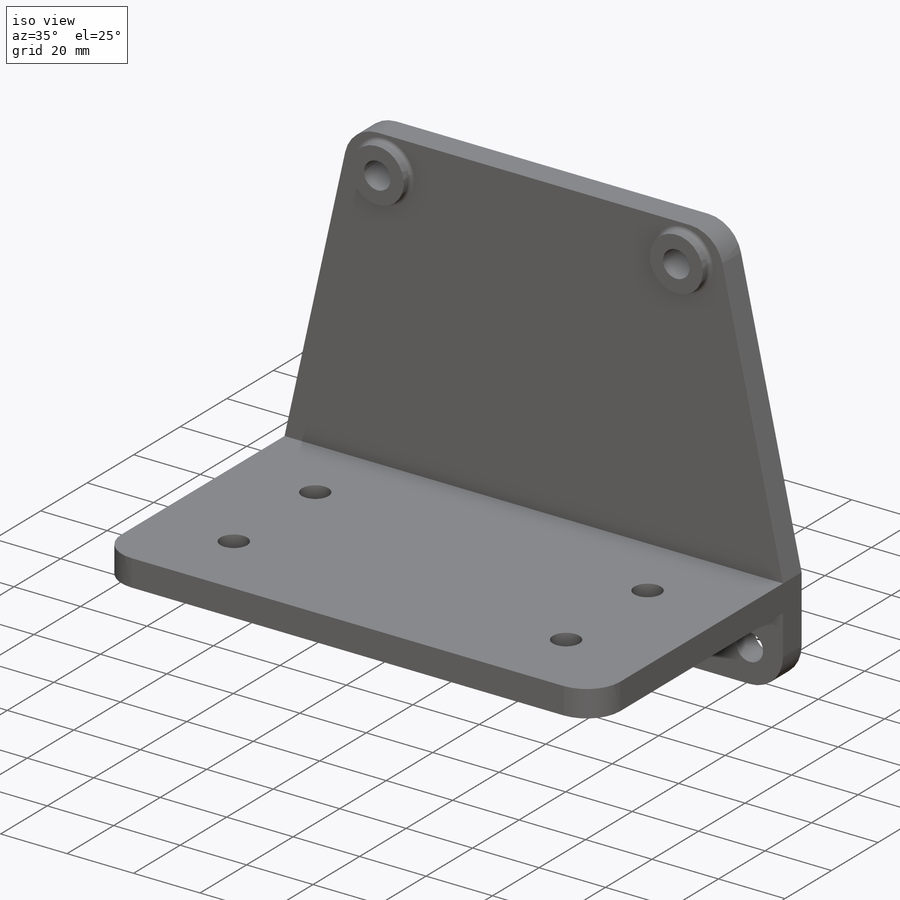
[diagram: iso view]
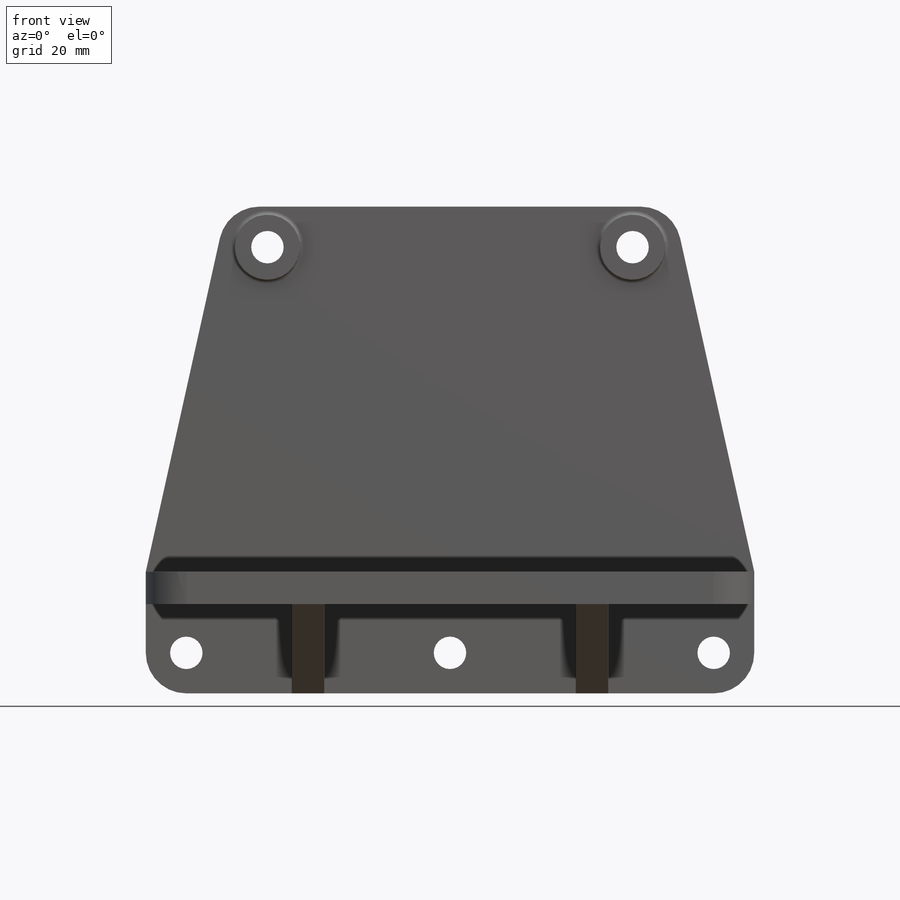
[diagram: front view]
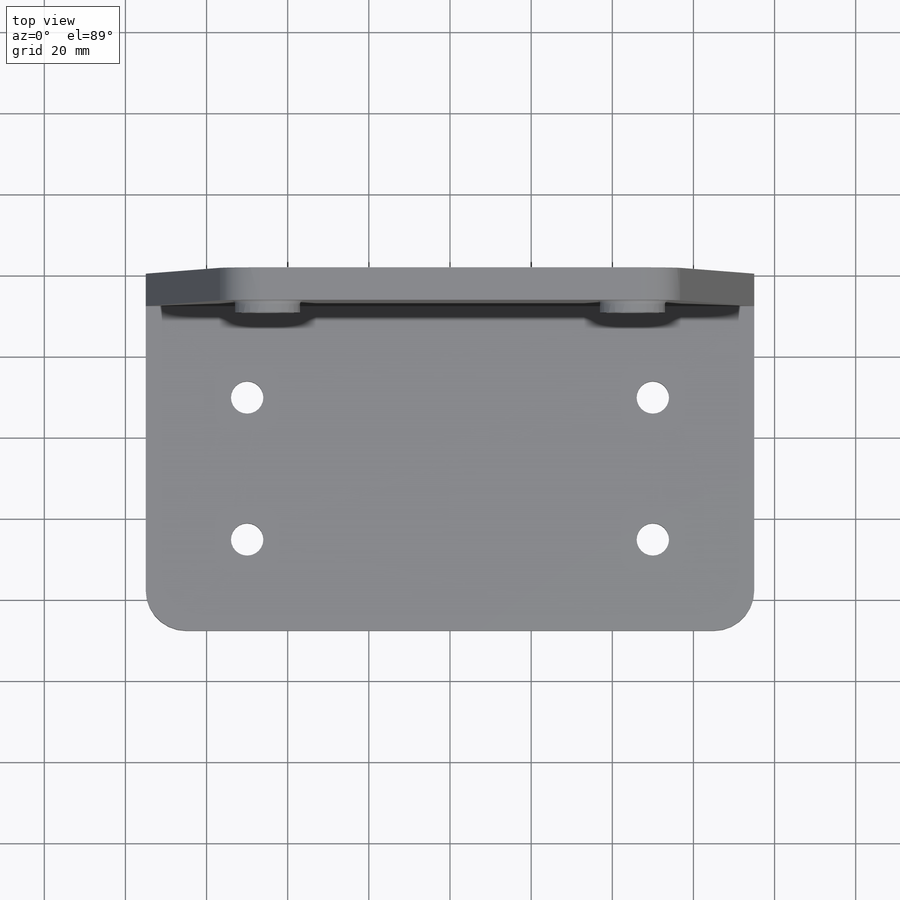
[diagram: top view]
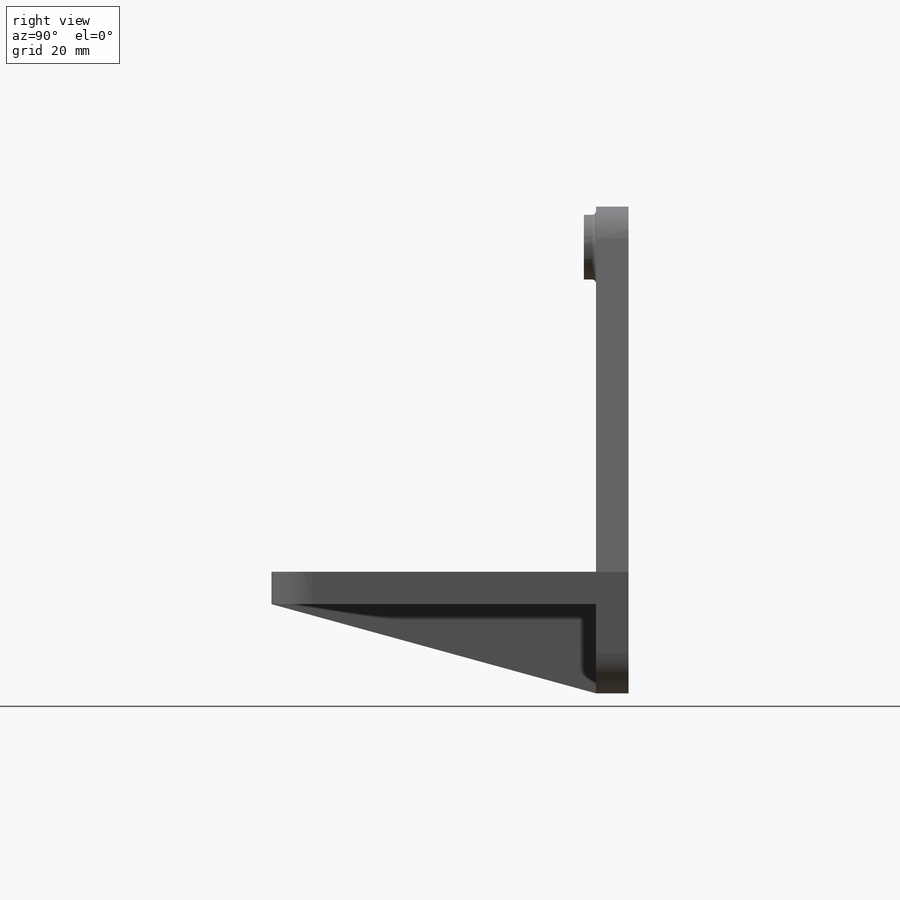
[diagram: right view]
SOLIDWORKS PART (.sldprt)
format: sldprt  version: not decoded by parser v0  size: 356,352 bytes
history: native  units: mm
features: sketch x6, plane x4, extrude x3, cut_extrude x2, mirror x2, material x1, fillet x1 (+9 scaffold rows collapsed)
feature tree (28):
  scaffold x9  (default folders/planes/origin — collapsed)
  material  "Сталь"
  plane  "Спереди"
  plane  "Сверху"
  plane  "Справа"
  sketch  "Эскиз1"  dims[D5=~10.758868mm D1=75.0mm D2=120.0mm D3=30.0mm D4=55.0mm]
  extrude  "Бобышка-Вытянуть1"  Depth=8mm
  sketch  "Эскиз2"  dims[c1.D2=8.0mm c1.D3=8.0mm c1.D4=8.0mm c1.D5=8.0mm c1.D6=8.0mm c1.D1=45.0mm c2.D3=65.0mm c2.D4=10.0mm c2.D5=10.0mm c2.D6=100.0mm]
  cut_extrude  "Вырез-Вытянуть1"  [1 undecoded]
  sketch  "Эскиз3"  dims[D1=8.0mm]
  extrude  "Бобышка-Вытянуть2"  Depth=80mm
  sketch  "Эскиз5"  dims[c1.D1=8.0mm c1.D2=8.0mm c1.D3=8.0mm c2.D1=75.0mm c2.D2=100.0mm c2.D3=35.0mm]
  cut_extrude  "Вырез-Вытянуть2"  [1 undecoded]
  plane  "Плоскость1"  Offset=40mm
  sketch  "Эскиз6"  dims[D1=8.0mm]
  fillet  "Скругление2"  Radius=10mm
  mirror  "Зеркальное отражение1"
  sketch  "Эскиз7"  dims[D1=16.0mm]
  extrude  "Бобышка-Вытянуть3"  Depth=3mm
  mirror  "Скругление3"
decode coverage: 10 of 14 modeling features carry decoded parameters
note: ~ marks probable driven/reference dimensions
note: 2 parameter values undecoded
note: suppression state not decoded; provenance and decode notes live in map.json
